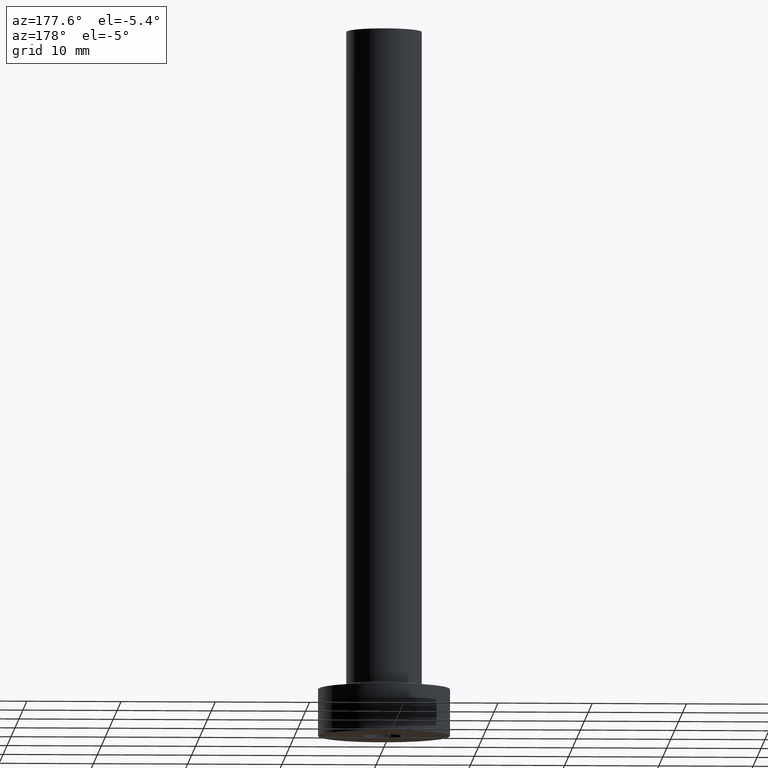
[diagram: clean part render]
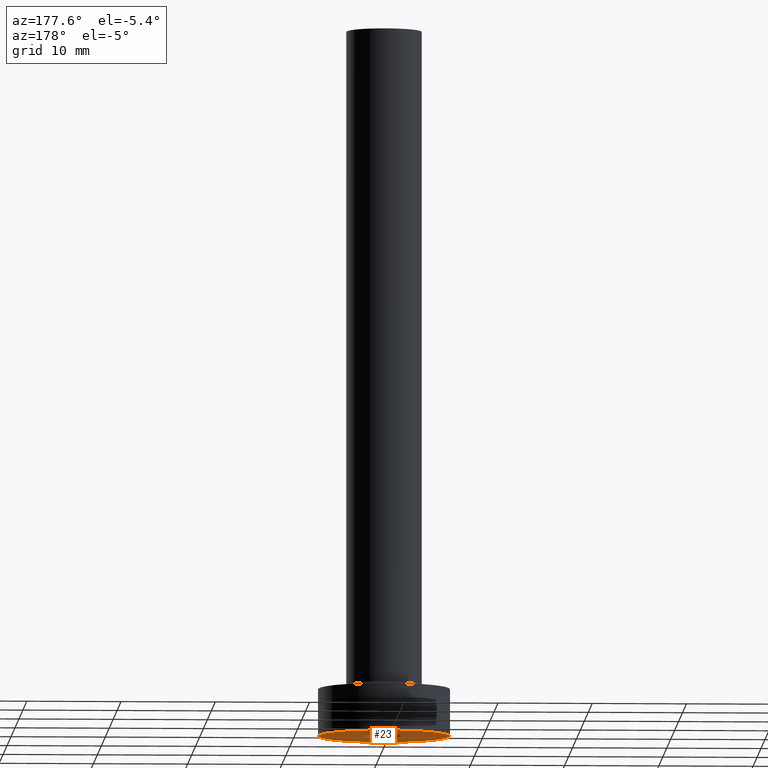
[diagram: same view with one face highlighted and labeled with its STEP entity id]
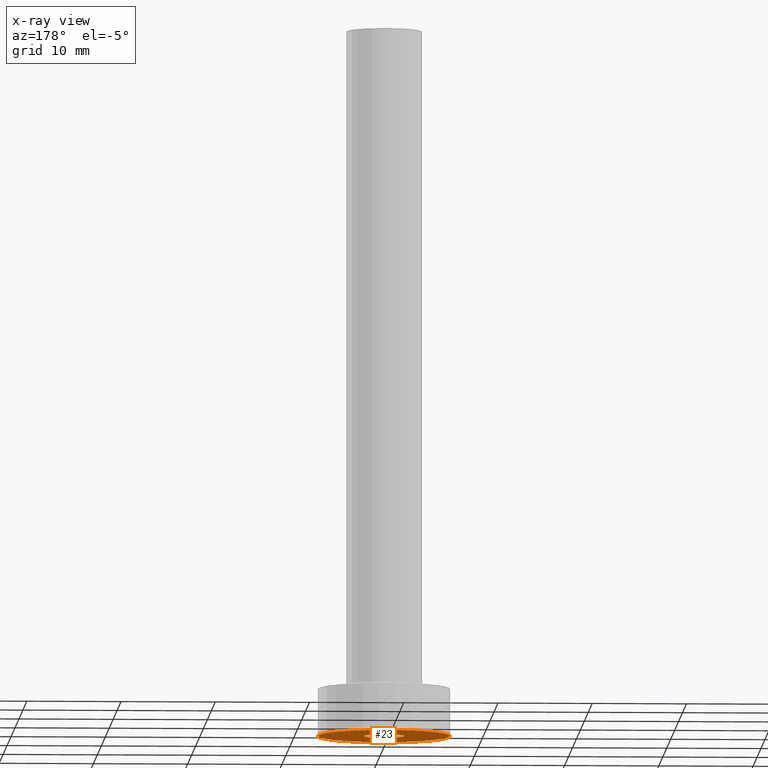
[diagram: x-ray of the same camera — body ghosted, the highlighted face saturated]
A machine part, auxiliary view. The second image highlights one B-rep face of the part: STEP entity #23.
The next image is the same camera in x-ray: the body ghosted, the highlighted face saturated — about 0% of this face is hidden behind the body in this view.
In plain terms, the highlighted planar face has unit normal (0, 0, 1).
Its self-contained STEP definition (entity closure, byte-faithful):
#5 = CIRCLE ( 'NONE', #27, 2.149999999999999911 ) ;
#15 = CARTESIAN_POINT ( 'NONE',  ( 2.149999999999999911, 2.632990618166808742E-16, 0.000000000000000000 ) ) ;
#23 = ADVANCED_FACE ( 'NONE', ( #92, #237 ), #349, .F. ) ;
#27 = AXIS2_PLACEMENT_3D ( 'NONE', #67, #42, #177 ) ;
#30 = CARTESIAN_POINT ( 'NONE',  ( 0.000000000000000000, 0.000000000000000000, 0.000000000000000000 ) ) ;
#33 = VERTEX_POINT ( 'NONE', #157 ) ;
#38 = EDGE_CURVE ( 'NONE', #232, #361, #159, .T. ) ;
#42 = DIRECTION ( 'NONE',  ( -0.000000000000000000, -0.000000000000000000, -1.000000000000000000 ) ) ;
#57 = AXIS2_PLACEMENT_3D ( 'NONE', #305, #87, #83 ) ;
#67 = CARTESIAN_POINT ( 'NONE',  ( 0.000000000000000000, 0.000000000000000000, 0.000000000000000000 ) ) ;
#83 = DIRECTION ( 'NONE',  ( 1.000000000000000000, 0.000000000000000000, 0.000000000000000000 ) ) ;
#87 = DIRECTION ( 'NONE',  ( -0.000000000000000000, -0.000000000000000000, -1.000000000000000000 ) ) ;
#88 = DIRECTION ( 'NONE',  ( 0.000000000000000000, 0.000000000000000000, 1.000000000000000000 ) ) ;
#91 = CARTESIAN_POINT ( 'NONE',  ( 0.000000000000000000, 0.000000000000000000, 0.000000000000000000 ) ) ;
#92 = FACE_BOUND ( 'NONE', #171, .T. ) ;
#93 = CARTESIAN_POINT ( 'NONE',  ( -7.000000000000000000, 0.000000000000000000, 0.000000000000000000 ) ) ;
#95 = EDGE_CURVE ( 'NONE', #33, #128, #96, .T. ) ;
#96 = CIRCLE ( 'NONE', #130, 7.000000000000000000 ) ;
#103 = CARTESIAN_POINT ( 'NONE',  ( -2.149999999999999911, 0.000000000000000000, 0.000000000000000000 ) ) ;
#128 = VERTEX_POINT ( 'NONE', #93 ) ;
#129 = AXIS2_PLACEMENT_3D ( 'NONE', #262, #155, #258 ) ;
#130 = AXIS2_PLACEMENT_3D ( 'NONE', #91, #456, #410 ) ;
#155 = DIRECTION ( 'NONE',  ( 0.000000000000000000, 0.000000000000000000, 1.000000000000000000 ) ) ;
#157 = CARTESIAN_POINT ( 'NONE',  ( 7.000000000000000000, 8.572527594031473190E-16, 0.000000000000000000 ) ) ;
#159 = CIRCLE ( 'NONE', #57, 2.149999999999999911 ) ;
#161 = ORIENTED_EDGE ( 'NONE', *, *, #38, .F. ) ;
#165 = DIRECTION ( 'NONE',  ( 1.000000000000000000, 0.000000000000000000, -0.000000000000000000 ) ) ;
#171 = EDGE_LOOP ( 'NONE', ( #161, #231 ) ) ;
#177 = DIRECTION ( 'NONE',  ( 1.000000000000000000, 0.000000000000000000, 0.000000000000000000 ) ) ;
#197 = EDGE_CURVE ( 'NONE', #361, #232, #5, .T. ) ;
#201 = AXIS2_PLACEMENT_3D ( 'NONE', #30, #88, #165 ) ;
#204 = ORIENTED_EDGE ( 'NONE', *, *, #95, .F. ) ;
#231 = ORIENTED_EDGE ( 'NONE', *, *, #197, .F. ) ;
#232 = VERTEX_POINT ( 'NONE', #103 ) ;
#237 = FACE_OUTER_BOUND ( 'NONE', #414, .T. ) ;
#258 = DIRECTION ( 'NONE',  ( 1.000000000000000000, 0.000000000000000000, 0.000000000000000000 ) ) ;
#261 = EDGE_CURVE ( 'NONE', #128, #33, #364, .T. ) ;
#262 = CARTESIAN_POINT ( 'NONE',  ( 0.000000000000000000, 0.000000000000000000, 0.000000000000000000 ) ) ;
#305 = CARTESIAN_POINT ( 'NONE',  ( 0.000000000000000000, 0.000000000000000000, 0.000000000000000000 ) ) ;
#349 = PLANE ( 'NONE',  #201 ) ;
#361 = VERTEX_POINT ( 'NONE', #15 ) ;
#364 = CIRCLE ( 'NONE', #129, 7.000000000000000000 ) ;
#410 = DIRECTION ( 'NONE',  ( 1.000000000000000000, 0.000000000000000000, 0.000000000000000000 ) ) ;
#414 = EDGE_LOOP ( 'NONE', ( #418, #204 ) ) ;
#418 = ORIENTED_EDGE ( 'NONE', *, *, #261, .F. ) ;
#456 = DIRECTION ( 'NONE',  ( 0.000000000000000000, 0.000000000000000000, 1.000000000000000000 ) ) ;